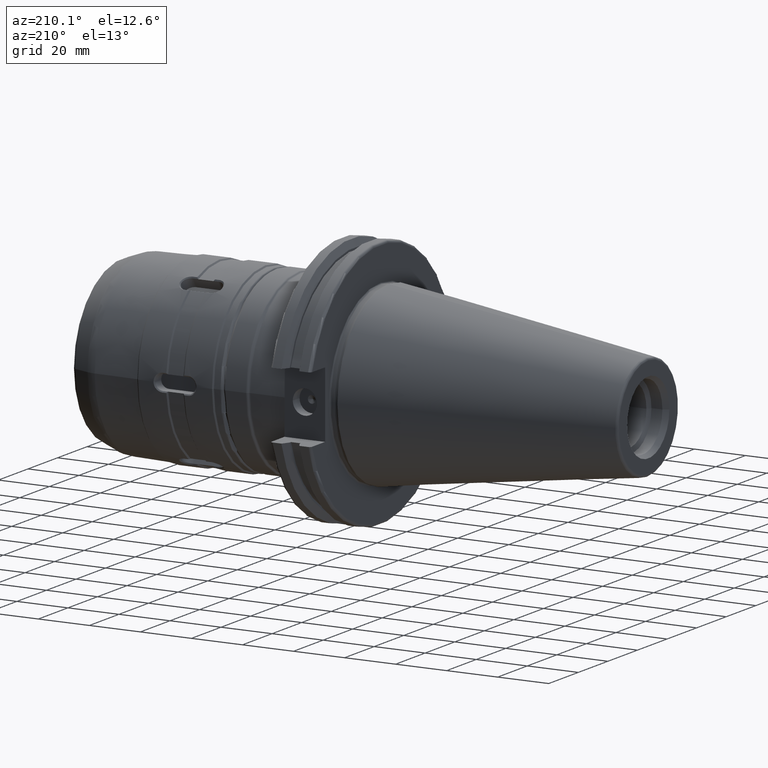
[diagram: clean part render]
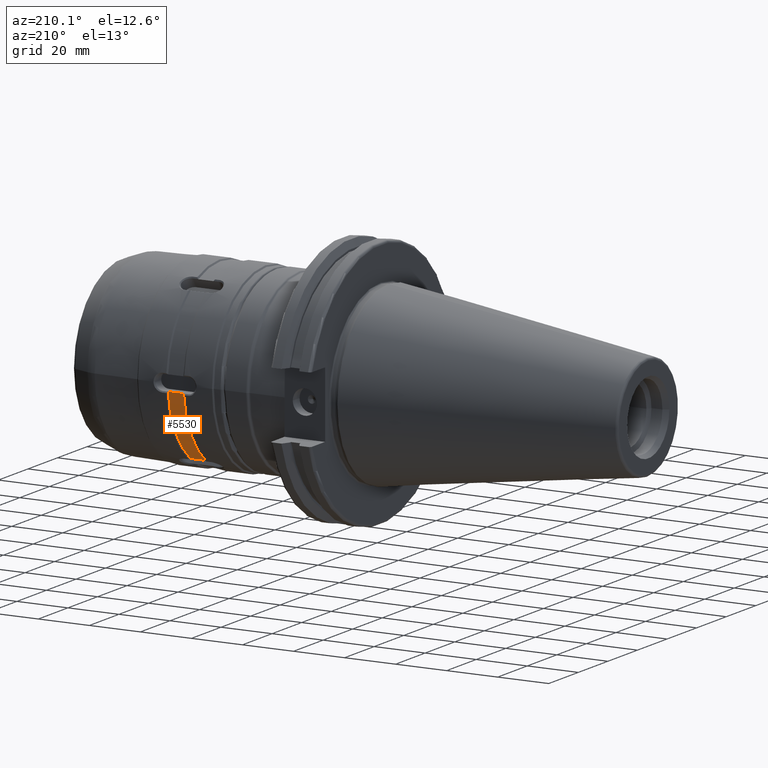
[diagram: same view with one face highlighted and labeled with its STEP entity id]
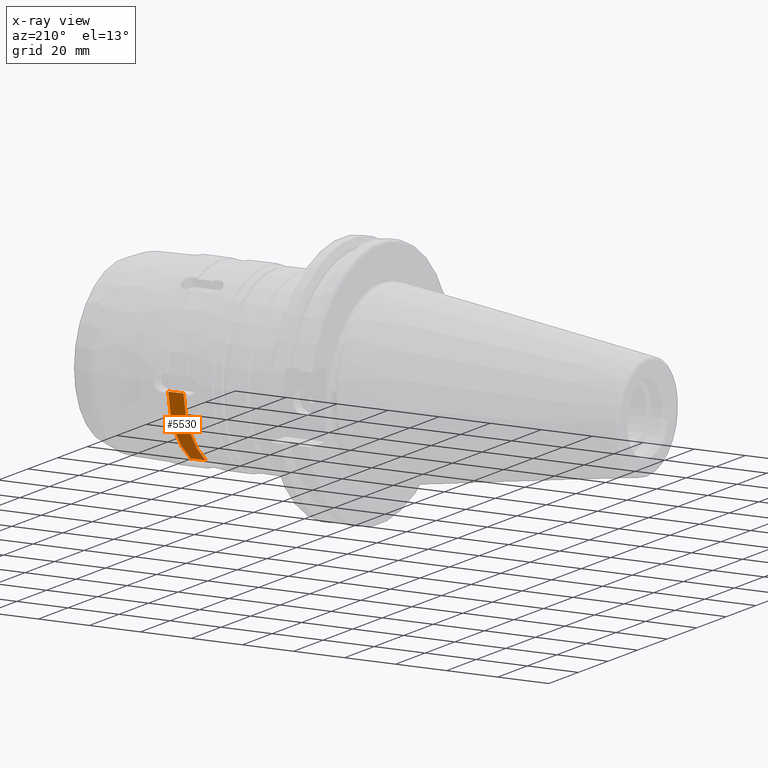
[diagram: x-ray of the same camera — body ghosted, the highlighted face saturated]
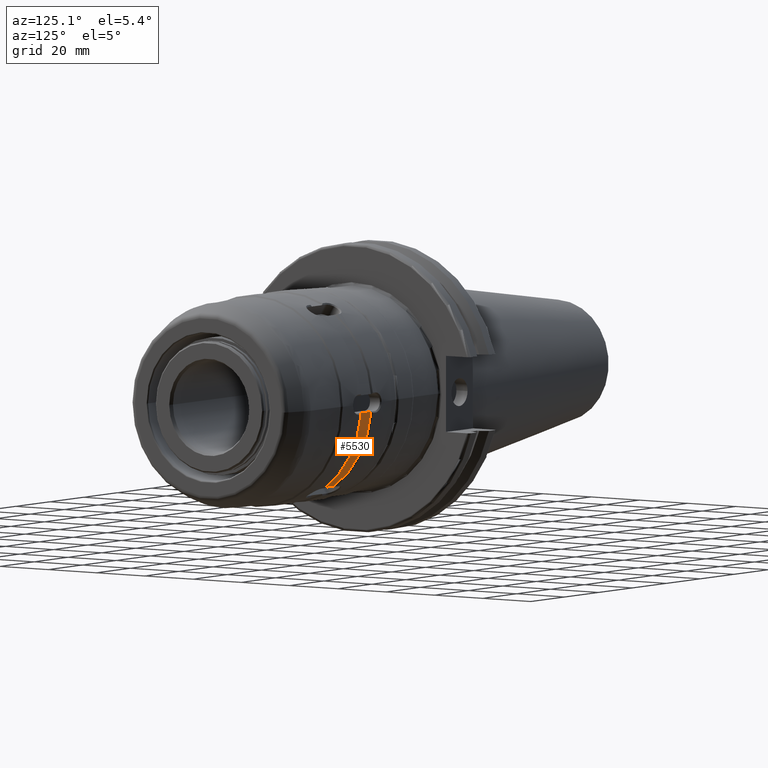
[diagram: same view with one face highlighted and labeled with its STEP entity id]
A machine part, auxiliary view. The second image highlights one B-rep face of the part: STEP entity #5530.
The next image is the same camera in x-ray: the body ghosted, the highlighted face saturated — about 0% of this face is hidden behind the body in this view.
A second angle (auxiliary view) of the same face is appended — the face is thin or edge-on in the first view.
In plain terms, the highlighted cylindrical surface (partial cylindrical patch) has radius 35.5 mm, axis along (1, 0, 0).
Its self-contained STEP definition (entity closure, byte-faithful):
#3229=DIRECTION('',(1.E0,0.E0,0.E0));
#3230=VECTOR('',#3229,6.E0);
#3231=CARTESIAN_POINT('',(-4.55E1,2.028458236718E1,-2.913392727027E1));
#3232=LINE('',#3231,#3230);
#3233=DIRECTION('',(1.E0,0.E0,0.E0));
#3234=VECTOR('',#3233,6.E0);
#3235=CARTESIAN_POINT('',(-4.55E1,3.537301231165E1,-3.E0));
#3236=LINE('',#3235,#3234);
#3436=CARTESIAN_POINT('',(-3.95E1,0.E0,0.E0));
#3437=DIRECTION('',(-1.E0,0.E0,0.E0));
#3438=DIRECTION('',(0.E0,9.964228820183E-1,-8.450704225352E-2));
#3439=AXIS2_PLACEMENT_3D('',#3436,#3437,#3438);
#3636=CARTESIAN_POINT('',(-4.55E1,0.E0,0.E0));
#3637=DIRECTION('',(1.E0,0.E0,0.E0));
#3638=DIRECTION('',(0.E0,5.713966863994E-1,-8.206740076132E-1));
#3639=AXIS2_PLACEMENT_3D('',#3636,#3637,#3638);
#4825=CARTESIAN_POINT('',(-4.55E1,3.537301231165E1,-3.E0));
#4826=CARTESIAN_POINT('',(-3.95E1,3.537301231165E1,-3.E0));
#4827=VERTEX_POINT('',#4825);
#4828=VERTEX_POINT('',#4826);
#4901=CARTESIAN_POINT('',(-4.55E1,2.028458236718E1,-2.913392727027E1));
#4902=CARTESIAN_POINT('',(-3.95E1,2.028458236718E1,-2.913392727027E1));
#4903=VERTEX_POINT('',#4901);
#4904=VERTEX_POINT('',#4902);
#5515=CARTESIAN_POINT('',(0.E0,0.E0,0.E0));
#5516=DIRECTION('',(1.E0,0.E0,0.E0));
#5517=DIRECTION('',(0.E0,-1.E0,0.E0));
#5518=AXIS2_PLACEMENT_3D('',#5515,#5516,#5517);
#5519=CYLINDRICAL_SURFACE('',#5518,3.55E1);
#5521=ORIENTED_EDGE('',*,*,#5520,.T.);
#5523=ORIENTED_EDGE('',*,*,#5522,.F.);
#5525=ORIENTED_EDGE('',*,*,#5524,.F.);
#5527=ORIENTED_EDGE('',*,*,#5526,.F.);
#5528=EDGE_LOOP('',(#5521,#5523,#5525,#5527));
#5529=FACE_OUTER_BOUND('',#5528,.F.);
#5530=ADVANCED_FACE('',(#5529),#5519,.T.);
#3440=CIRCLE('',#3439,3.55E1);
#3640=CIRCLE('',#3639,3.55E1);
#5520=EDGE_CURVE('',#4903,#4904,#3232,.T.);
#5522=EDGE_CURVE('',#4828,#4904,#3440,.T.);
#5524=EDGE_CURVE('',#4827,#4828,#3236,.T.);
#5526=EDGE_CURVE('',#4903,#4827,#3640,.T.);